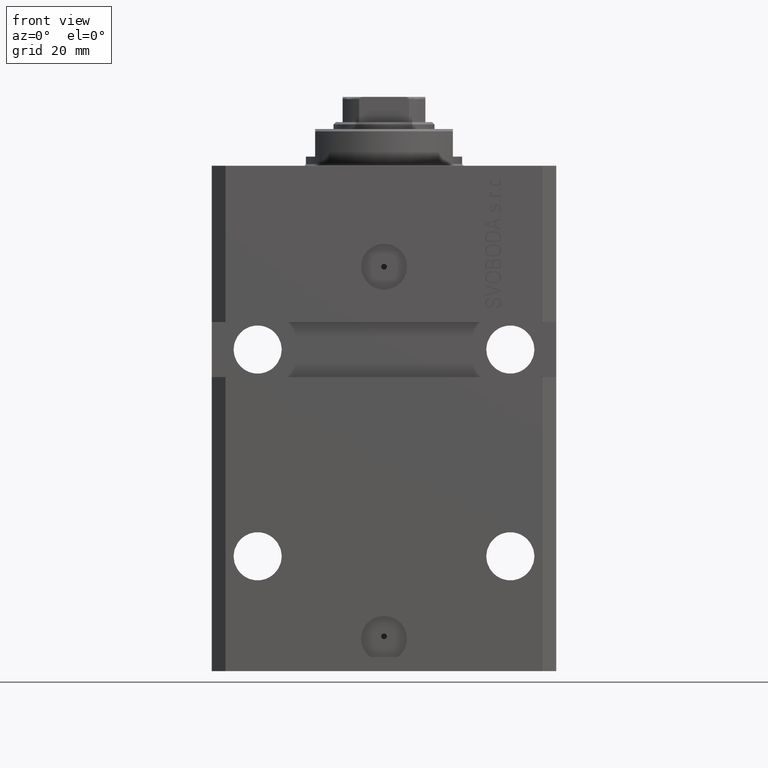
[diagram: clean part render]
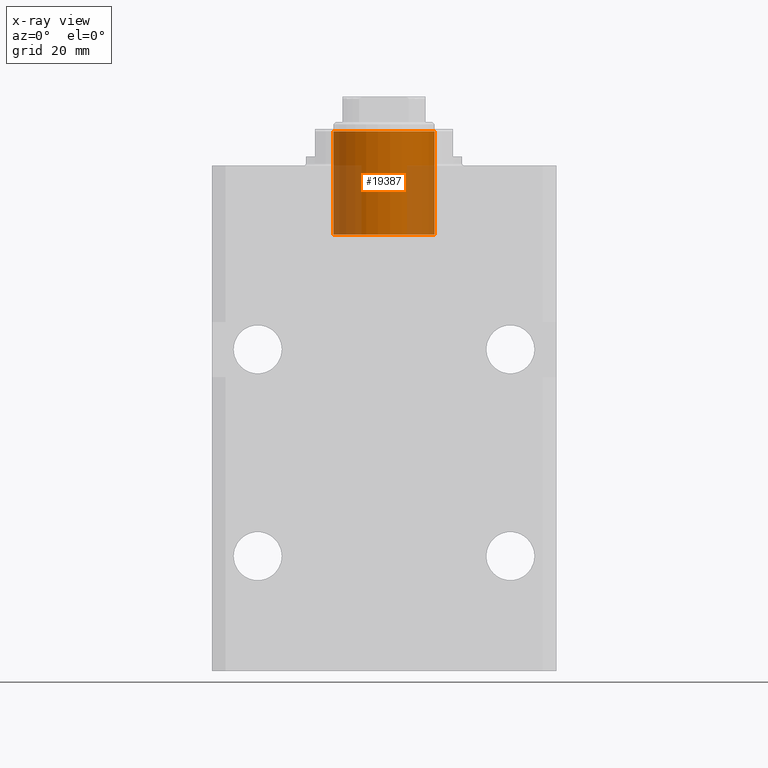
[diagram: x-ray — body ghosted, one internal face saturated and labeled with its STEP entity id]
A machine part, front view, then the same camera in x-ray: the body is ghosted and one INTERNAL B-rep face — a face not visible from any outside direction — is saturated and labeled: STEP entity #19387.
In plain terms, the highlighted cylindrical surface (partial cylindrical patch) has radius 11 mm, axis along (0, -0, 1).
Its self-contained STEP definition (entity closure, byte-faithful):
#1045 = FACE_OUTER_BOUND ( 'NONE', #20806, .T. ) ;
#1213 = DIRECTION ( 'NONE',  ( 0.000000000000000000, 0.000000000000000000, -1.000000000000000000 ) ) ;
#1676 = EDGE_CURVE ( 'NONE', #9108, #45693, #39236, .T. ) ;
#2425 = CARTESIAN_POINT ( 'NONE',  ( 11.00000000000000000, 1.347111479062088405E-15, 15.00000000000000000 ) ) ;
#3891 = DIRECTION ( 'NONE',  ( -1.000000000000000000, 0.000000000000000000, 0.000000000000000000 ) ) ;
#5147 = DIRECTION ( 'NONE',  ( 0.000000000000000000, 0.000000000000000000, -1.000000000000000000 ) ) ;
#6051 = DIRECTION ( 'NONE',  ( -0.000000000000000000, -0.000000000000000000, -1.000000000000000000 ) ) ;
#6652 = VERTEX_POINT ( 'NONE', #30237 ) ;
#7860 = EDGE_CURVE ( 'NONE', #9108, #31637, #27097, .T. ) ;
#9108 = VERTEX_POINT ( 'NONE', #27834 ) ;
#9326 = AXIS2_PLACEMENT_3D ( 'NONE', #42193, #5147, #24027 ) ;
#9816 = ORIENTED_EDGE ( 'NONE', *, *, #7860, .F. ) ;
#11451 = AXIS2_PLACEMENT_3D ( 'NONE', #29788, #1213, #3891 ) ;
#11931 = CYLINDRICAL_SURFACE ( 'NONE', #45165, 11.00000000000000000 ) ;
#16307 = ORIENTED_EDGE ( 'NONE', *, *, #1676, .T. ) ;
#19387 = ADVANCED_FACE ( 'NONE', ( #1045 ), #11931, .F. ) ;
#20806 = EDGE_LOOP ( 'NONE', ( #9816, #16307, #34234, #25972 ) ) ;
#23320 = CARTESIAN_POINT ( 'NONE',  ( 0.000000000000000000, 0.000000000000000000, 15.00000000000000000 ) ) ;
#24027 = DIRECTION ( 'NONE',  ( -1.000000000000000000, 0.000000000000000000, 0.000000000000000000 ) ) ;
#25972 = ORIENTED_EDGE ( 'NONE', *, *, #47009, .F. ) ;
#26232 = DIRECTION ( 'NONE',  ( -0.000000000000000000, -0.000000000000000000, -1.000000000000000000 ) ) ;
#27097 = CIRCLE ( 'NONE', #9326, 11.00000000000000000 ) ;
#27834 = CARTESIAN_POINT ( 'NONE',  ( 11.00000000000000000, 1.347111479062088405E-15, 15.00000000000000000 ) ) ;
#28887 = LINE ( 'NONE', #42706, #36462 ) ;
#29788 = CARTESIAN_POINT ( 'NONE',  ( 0.000000000000000000, 0.000000000000000000, -7.500000000000000000 ) ) ;
#30234 = CARTESIAN_POINT ( 'NONE',  ( 11.00000000000000000, 1.347111479062088405E-15, -7.500000000000000000 ) ) ;
#30237 = CARTESIAN_POINT ( 'NONE',  ( -11.00000000000000000, 0.000000000000000000, -7.500000000000000000 ) ) ;
#30881 = CARTESIAN_POINT ( 'NONE',  ( -11.00000000000000000, 0.000000000000000000, 15.00000000000000000 ) ) ;
#30893 = EDGE_CURVE ( 'NONE', #45693, #6652, #33849, .T. ) ;
#31637 = VERTEX_POINT ( 'NONE', #30881 ) ;
#33849 = CIRCLE ( 'NONE', #11451, 11.00000000000000000 ) ;
#34234 = ORIENTED_EDGE ( 'NONE', *, *, #30893, .T. ) ;
#36462 = VECTOR ( 'NONE', #39799, 1000.000000000000000 ) ;
#38088 = DIRECTION ( 'NONE',  ( -1.000000000000000000, 0.000000000000000000, 0.000000000000000000 ) ) ;
#39236 = LINE ( 'NONE', #2425, #44687 ) ;
#39799 = DIRECTION ( 'NONE',  ( -0.000000000000000000, -0.000000000000000000, -1.000000000000000000 ) ) ;
#42193 = CARTESIAN_POINT ( 'NONE',  ( 0.000000000000000000, 0.000000000000000000, 15.00000000000000000 ) ) ;
#42706 = CARTESIAN_POINT ( 'NONE',  ( -11.00000000000000000, 0.000000000000000000, 15.00000000000000000 ) ) ;
#44687 = VECTOR ( 'NONE', #6051, 1000.000000000000000 ) ;
#45165 = AXIS2_PLACEMENT_3D ( 'NONE', #23320, #26232, #38088 ) ;
#45693 = VERTEX_POINT ( 'NONE', #30234 ) ;
#47009 = EDGE_CURVE ( 'NONE', #31637, #6652, #28887, .T. ) ;